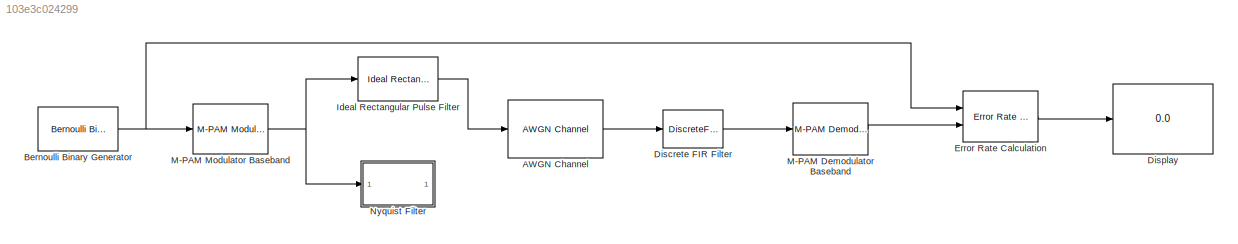
MODEL slx_103e3c024299
KIND model
CONFIG AbsTol = auto
CONFIG EnableMultiTasking = off
CONFIG FixedStep = auto
CONFIG MaxStep = auto
CONFIG MinStep = auto
CONFIG RelTol = 1e-3
CONFIG SampleTimeConstraint = Unconstrained
CONFIG Solver = VariableStepDiscrete
CONFIG SolverName = VariableStepDiscrete
CONFIG StartTime = 0.0
CONFIG StopTime = time
BLOCK [Reference] AWGN Channel  REF=commchan3/AWGN
Channel
  Ports = [1, 1]
  SourceBlock = commchan3/AWGN\nChannel
  SourceProductBaseCode = CM
  SourceProductName = Communications System Toolbox
  SourceType = AWGN Channel
  UserDataPersistent = on
BLOCK [Reference] Bernoulli Binary Generator  REF=commrandsrc3/Bernoulli Binary
Generator
  Ports = [0, 1]
  SourceBlock = commrandsrc3/Bernoulli Binary\nGenerator
  SourceProductBaseCode = CM
  SourceProductName = Communications System Toolbox
  SourceType = Bernoulli Binary Generator
BLOCK [DiscreteFir] Discrete FIR Filter
  Coefficients = hrn
  InputPortMap = u0
  OutputPortMap = o0
  Ports = [1, 1]
BLOCK [Display] Display
  Decimation = 1
  Ports = [1]
BLOCK [Reference] Error Rate Calculation  REF=commsink2/Error Rate
Calculation
  Ports = [2, 1]
  SourceBlock = commsink2/Error Rate\nCalculation
  SourceProductBaseCode = CM
  SourceProductName = Communications System Toolbox
  SourceType = Error Rate Calculation
BLOCK [Reference] Ideal Rectangular Pulse Filter  REF=commfilt2/Ideal Rectangular
Pulse Filter
  Ports = [1, 1]
  SourceBlock = commfilt2/Ideal Rectangular\nPulse Filter
  SourceProductBaseCode = CM
  SourceProductName = Communications System Toolbox
  SourceType = Ideal Rectangular Pulse Filter
  UserDataPersistent = on
BLOCK [Reference] M-PAM Demodulator Baseband  REF=commdigbbndam3/M-PAM
Demodulator
Baseband
  Ports = [1, 1]
  SourceBlock = commdigbbndam3/M-PAM\nDemodulator\nBaseband
  SourceProductBaseCode = CM
  SourceProductName = Communications System Toolbox
  SourceType = M-PAM Demodulator Baseband
BLOCK [Reference] M-PAM Modulator Baseband  REF=commdigbbndam3/M-PAM
Modulator
Baseband
  Ports = [1, 1]
  SourceBlock = commdigbbndam3/M-PAM\nModulator\nBaseband
  SourceProductBaseCode = CM
  SourceProductName = Communications System Toolbox
  SourceType = M-PAM Modulator Baseband
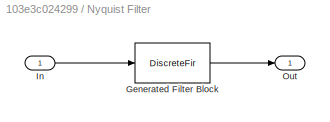
BLOCK [SubSystem] Nyquist Filter
  Commented = on
  CopyFcn = fdesignblkfcn(gcbh, {'CopyFcn'});
  DialogController = fdesignblkfcn
  InitFcn = fdesignblkfcn(gcbh, {'InitFcn'});
  Ports = [1, 1]
  RequestExecContextInheritance = off
  UserDataPersistent = on
  Variant = off
BLOCK [DiscreteFir] Nyquist Filter/Generated Filter Block
  Coefficients = [-1.5162272612995586e-05 0 4.1706564279713027e-05 0 -8.6397453235949307e-05 0 0.00015611233941239259 0 -0.00025915216340561289 0 0.00040534096772710702 0 -0.00060612208112690072 0 0.00087466461351889491 0 -0.0012260032157642615 0 0.0016772472887656247 0 -0.0022479153417375975 0 0.002960480176087802 0 -0.0038412587047380814 0 0.0049218611113159959 0 -0.0062415564318662039 0 0.0078511744671022864 0 ...<+867ch>
  InputPortMap = u0
  InputProcessing = Columns as channels (frame based)
  OutputPortMap = o0
  Ports = [1, 1]
  Tag = BlockMethodSubSystem
BLOCK [Inport] Nyquist Filter/In
  IconDisplay = Port number
BLOCK [Outport] Nyquist Filter/Out
  IconDisplay = Port number
LINE AWGN Channel:1 -> Discrete FIR Filter:1
NET Bernoulli Binary Generator:1 -> Error Rate Calculation:1, M-PAM Modulator Baseband:1
LINE Discrete FIR Filter:1 -> M-PAM Demodulator Baseband:1
LINE Error Rate Calculation:1 -> Display:1
LINE Ideal Rectangular Pulse Filter:1 -> AWGN Channel:1
LINE M-PAM Demodulator Baseband:1 -> Error Rate Calculation:2
NET M-PAM Modulator Baseband:1 -> Ideal Rectangular Pulse Filter:1, Nyquist Filter:1
note: NET lines group one-source signal fan-out (src -> all destinations, sorted); 1:1 wires keep LINE
